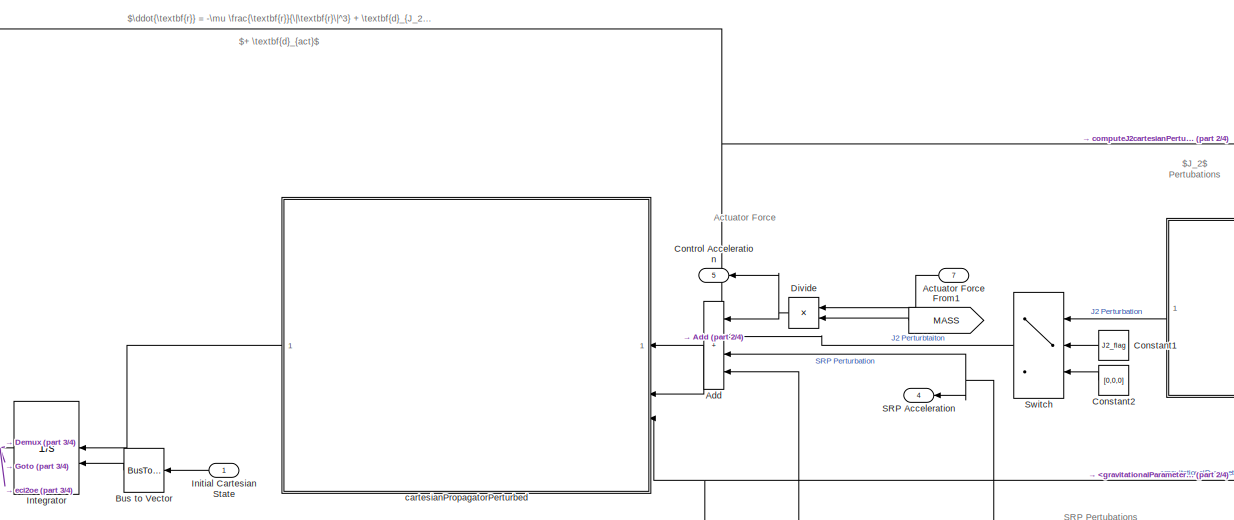
[diagram: root canvas - part 1/4, top center region]
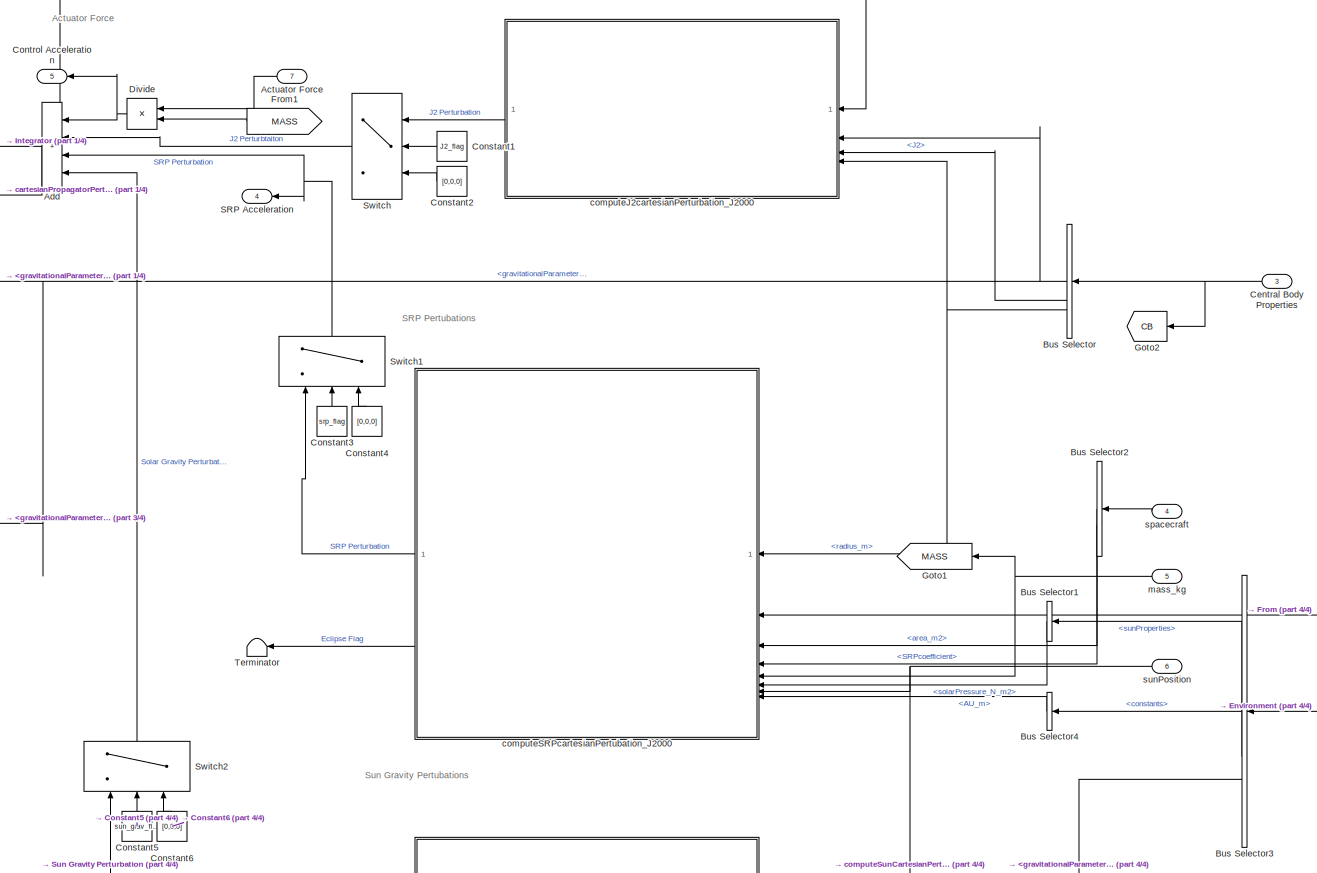
[diagram: root canvas - part 2/4, middle right region]
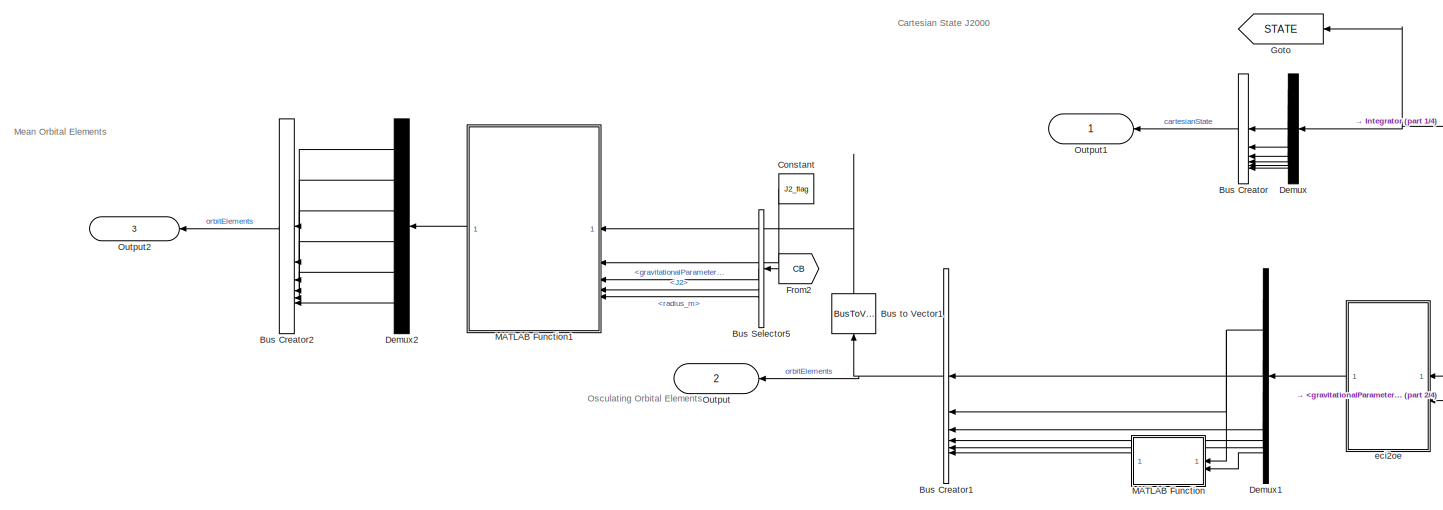
[diagram: root canvas - part 3/4, middle left region]
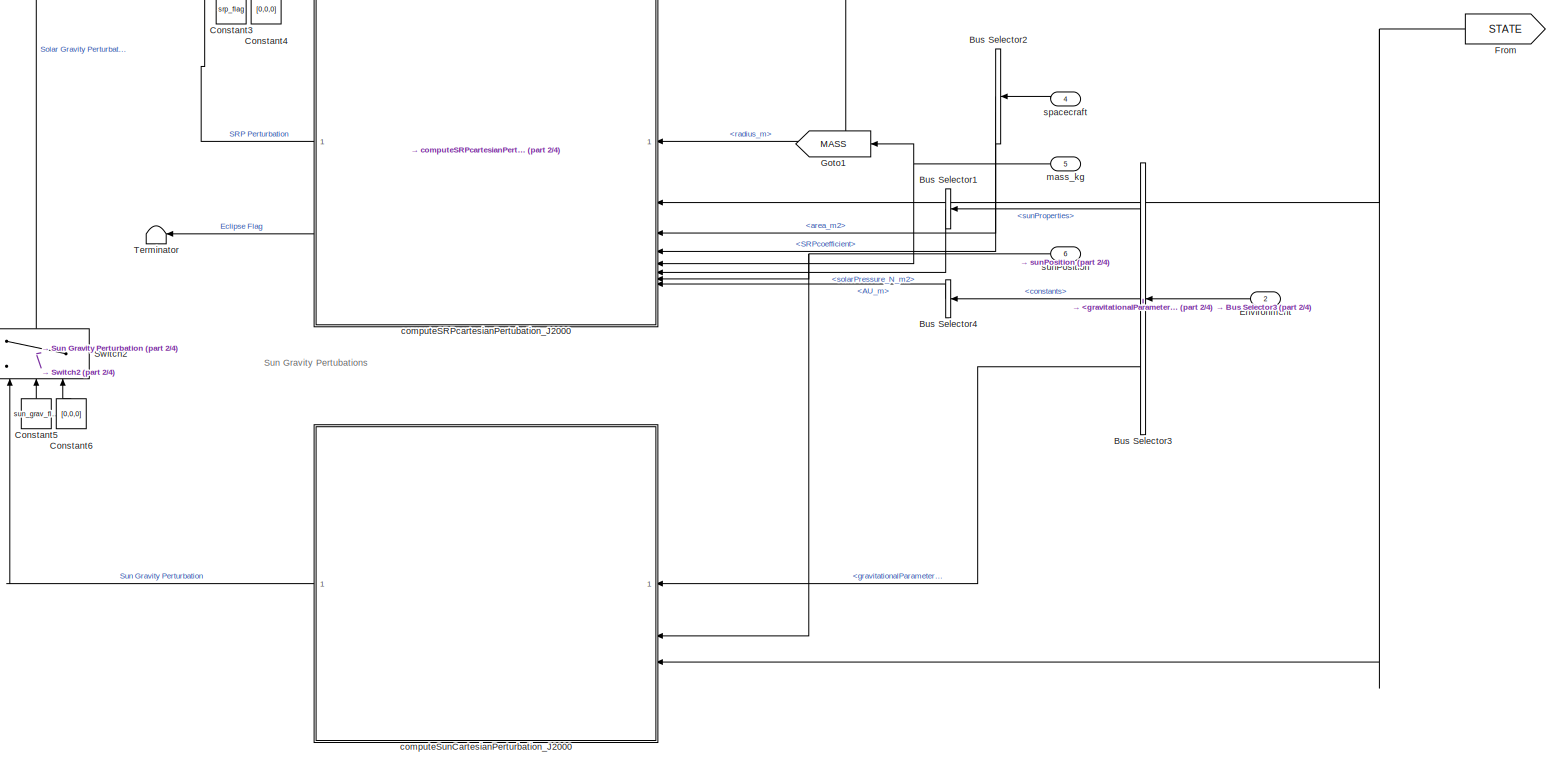
[diagram: root canvas - part 4/4, bottom right region]
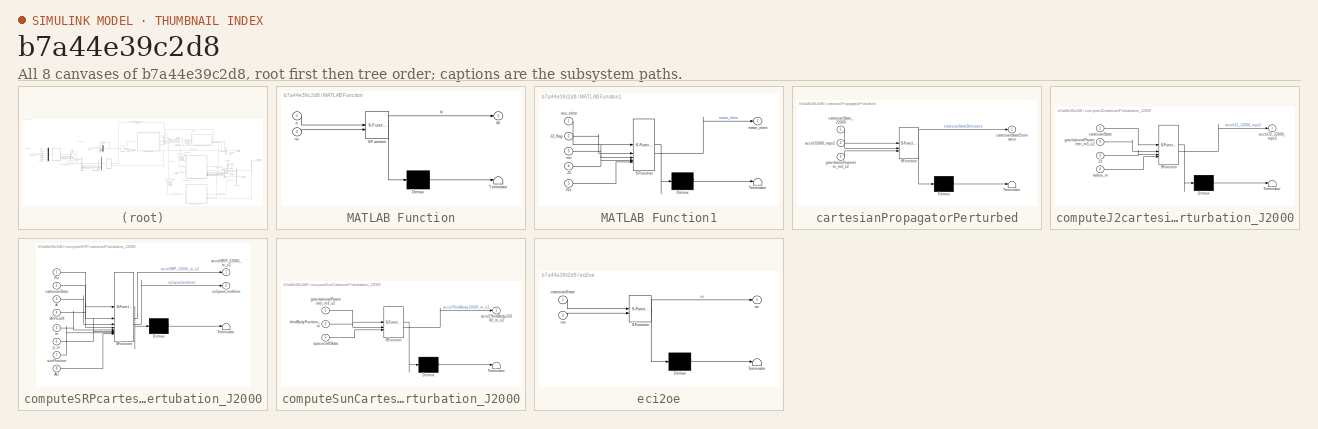
[diagram: thumbnail index - all 8 canvases of the model, root first then tree order]
MODEL slx_b7a44e39c2d8
KIND model
CONFIG AbsTol = auto
CONFIG EnableMultiTasking = off
CONFIG FixedStep = dt
CONFIG MaxStep = max_step_size
CONFIG MinStep = auto
CONFIG RelTol = relative_tolerance
CONFIG SampleTimeConstraint = Unconstrained
CONFIG SolverName = ode4
CONFIG StartTime = 0.0
CONFIG StopTime = 10.0
BLOCK [Inport] Actuator Force
  Port = 7
  PortDimensions = 3
BLOCK [Sum] Add
  IconShape = rectangular
  Inputs = ++++
BLOCK [BusCreator] Bus Creator
  DisplayOption = bar
  InheritFromInputs = off
  Inputs = 6
  NonVirtualBus = on
  OutDataTypeStr = Bus: cartesianState
BLOCK [BusCreator] Bus Creator1
  DisplayOption = bar
  InheritFromInputs = off
  Inputs = 6
  OutDataTypeStr = Bus: osculatingOrbitElements
BLOCK [BusCreator] Bus Creator2
  DisplayOption = bar
  InheritFromInputs = off
  Inputs = 6
  NonVirtualBus = on
  OutDataTypeStr = Bus: osculatingOrbitElements
BLOCK [BusSelector] Bus Selector
  OutputSignals = gravitationalParameter_m3_s2,J2,radius_m
BLOCK [BusSelector] Bus Selector1
  OutputSignals = solarPressure_N_m2
BLOCK [BusSelector] Bus Selector2
  OutputSignals = area_m2,SRPcoefficient
BLOCK [BusSelector] Bus Selector3
  OutputSignals = sunProperties,constants,sunProperties.gravitationalParameter_m3_s2
BLOCK [BusSelector] Bus Selector4
  OutputSignals = AU_m
BLOCK [BusSelector] Bus Selector5
  OutputSignals = gravitationalParameter_m3_s2,J2,radius_m
BLOCK [BusToVector] Bus to Vector
BLOCK [BusToVector] Bus to Vector1
  NameLocation = left
BLOCK [Inport] Central Body Properties
  OutDataTypeStr = Bus: planetProperties
  Port = 3
BLOCK [Constant] Constant
  Value = J2_flag
BLOCK [Constant] Constant1
  Value = J2_flag
BLOCK [Constant] Constant2
  Value = [0,0,0]
BLOCK [Constant] Constant3
  NameLocation = left
  Value = srp_flag
BLOCK [Constant] Constant4
  NameLocation = left
  Value = [0,0,0]
BLOCK [Constant] Constant5
  NameLocation = left
  Value = sun_grav_flag
BLOCK [Constant] Constant6
  NameLocation = left
  Value = [0,0,0]
BLOCK [Outport] Control Acceleration
  Port = 5
BLOCK [Demux] Demux
  Outputs = 6
BLOCK [Demux] Demux1
  Outputs = 6
BLOCK [Demux] Demux2
  Outputs = 6
BLOCK [Product] Divide
  Inputs = */
BLOCK [Inport] Environment
  OutDataTypeStr = Bus: environmentBus
  Port = 2
BLOCK [From] From
  GotoTag = STATE
BLOCK [From] From1
  GotoTag = MASS
BLOCK [From] From2
  GotoTag = CB
BLOCK [Goto] Goto
  GotoTag = STATE
BLOCK [Goto] Goto1
  GotoTag = MASS
BLOCK [Goto] Goto2
  GotoTag = CB
BLOCK [Inport] Initial Cartesian State
  OutDataTypeStr = Bus: cartesianState
BLOCK [Integrator] Integrator
  InitialConditionSource = external
BLOCK [SubSystem] MATLAB Function
  ErrorFcn = Stateflow.Translate.translate
  LibrarySourceBlock = simulink/User-Defined\nFunctions/MATLAB Function
  PermitHierarchicalResolution = ExplicitOnly
  SFBlockType = MATLAB Function
  TreatAsAtomicUnit = on
BLOCK [Demux] MATLAB Function/ Demux 
  Outputs = 1
BLOCK [S-Function] MATLAB Function/ SFunction 
  EnableBusSupport = on
  FunctionName = sf_sfun
  PortCounts = [2 2]
  SFcnIsStateOwnerBlock = off
  SFunctionDeploymentMode = off
  Tag = Stateflow S-Function 4
BLOCK [Terminator] MATLAB Function/ Terminator 
BLOCK [Outport] MATLAB Function/M
BLOCK [Inport] MATLAB Function/e
BLOCK [Inport] MATLAB Function/nu
  Port = 2
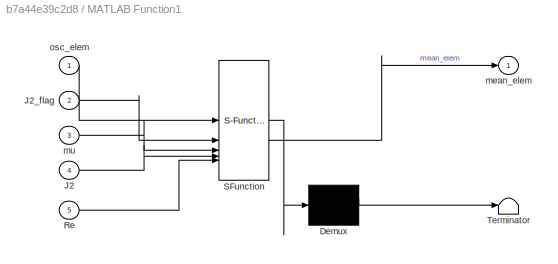
BLOCK [SubSystem] MATLAB Function1
  ErrorFcn = Stateflow.Translate.translate
  LibrarySourceBlock = simulink/User-Defined\nFunctions/MATLAB Function
  PermitHierarchicalResolution = ExplicitOnly
  SFBlockType = MATLAB Function
  TreatAsAtomicUnit = on
BLOCK [Demux] MATLAB Function1/ Demux 
  Outputs = 1
BLOCK [S-Function] MATLAB Function1/ SFunction 
  EnableBusSupport = on
  FunctionName = sf_sfun
  PortCounts = [5 2]
  SFcnIsStateOwnerBlock = off
  SFunctionDeploymentMode = off
  Tag = Stateflow S-Function 5
BLOCK [Terminator] MATLAB Function1/ Terminator 
BLOCK [Inport] MATLAB Function1/J2
  Port = 4
BLOCK [Inport] MATLAB Function1/J2_flag
  Port = 2
BLOCK [Inport] MATLAB Function1/Re
  Port = 5
BLOCK [Outport] MATLAB Function1/mean_elem
BLOCK [Inport] MATLAB Function1/mu
  Port = 3
BLOCK [Inport] MATLAB Function1/osc_elem
BLOCK [Outport] Output
  IconDisplay = Port number and signal name
  OutDataTypeStr = Bus: osculatingOrbitElements
  Port = 2
BLOCK [Outport] Output1
  IconDisplay = Port number and signal name
  OutDataTypeStr = Bus: cartesianState
BLOCK [Outport] Output2
  IconDisplay = Port number and signal name
  OutDataTypeStr = Bus: meanOrbitElements
  Port = 3
BLOCK [Outport] SRP Acceleration
  Port = 4
BLOCK [Switch] Switch
  Criteria = u2 > Threshold
  InputSameDT = off
  SaturateOnIntegerOverflow = off
BLOCK [Switch] Switch1
  Criteria = u2 > Threshold
  InputSameDT = off
  NameLocation = left
  SaturateOnIntegerOverflow = off
BLOCK [Switch] Switch2
  Criteria = u2 > Threshold
  InputSameDT = off
  NameLocation = left
  SaturateOnIntegerOverflow = off
BLOCK [Terminator] Terminator
BLOCK [SubSystem] cartesianPropagatorPerturbed
  ErrorFcn = Stateflow.Translate.translate
  LibrarySourceBlock = simulink/User-Defined\nFunctions/MATLAB Function
  PermitHierarchicalResolution = ExplicitOnly
  SFBlockType = MATLAB Function
  TreatAsAtomicUnit = on
BLOCK [Demux] cartesianPropagatorPerturbed/ Demux 
  Outputs = 1
BLOCK [S-Function] cartesianPropagatorPerturbed/ SFunction 
  EnableBusSupport = on
  FunctionName = sf_sfun
  PortCounts = [3 2]
  SFcnIsStateOwnerBlock = off
  SFunctionDeploymentMode = off
  Tag = Stateflow S-Function 1
BLOCK [Terminator] cartesianPropagatorPerturbed/ Terminator 
BLOCK [Inport] cartesianPropagatorPerturbed/accelJ2000_mps2
  Port = 2
BLOCK [Outport] cartesianPropagatorPerturbed/cartesianStateDerivative
BLOCK [Inport] cartesianPropagatorPerturbed/cartesianState_J2000
BLOCK [Inport] cartesianPropagatorPerturbed/gravitationParameter_m3_s2
  Port = 3
BLOCK [SubSystem] computeJ2cartesianPerturbation_J2000
  ErrorFcn = Stateflow.Translate.translate
  LibrarySourceBlock = simulink/User-Defined\nFunctions/MATLAB Function
  PermitHierarchicalResolution = ExplicitOnly
  SFBlockType = MATLAB Function
  TreatAsAtomicUnit = on
BLOCK [Demux] computeJ2cartesianPerturbation_J2000/ Demux 
  Outputs = 1
BLOCK [S-Function] computeJ2cartesianPerturbation_J2000/ SFunction 
  EnableBusSupport = on
  FunctionName = sf_sfun
  PortCounts = [4 2]
  SFcnIsStateOwnerBlock = off
  SFunctionDeploymentMode = off
  Tag = Stateflow S-Function 2
BLOCK [Terminator] computeJ2cartesianPerturbation_J2000/ Terminator 
BLOCK [Inport] computeJ2cartesianPerturbation_J2000/J2
  Port = 3
BLOCK [Outport] computeJ2cartesianPerturbation_J2000/accelJ2_J2000_mps2
BLOCK [Inport] computeJ2cartesianPerturbation_J2000/cartesianState
BLOCK [Inport] computeJ2cartesianPerturbation_J2000/gravitationalParameter_m3_s2
  Port = 2
BLOCK [Inport] computeJ2cartesianPerturbation_J2000/radius_m
  Port = 4
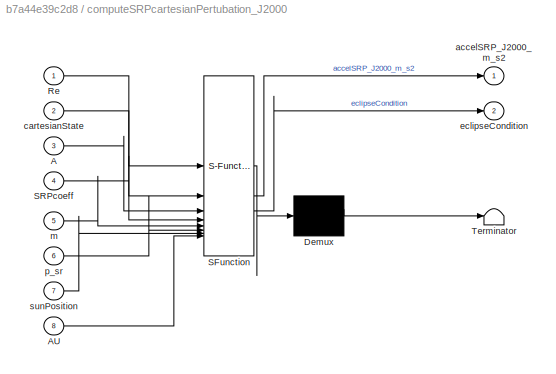
BLOCK [SubSystem] computeSRPcartesianPertubation_J2000
  ErrorFcn = Stateflow.Translate.translate
  LibrarySourceBlock = simulink/User-Defined\nFunctions/MATLAB Function
  PermitHierarchicalResolution = ExplicitOnly
  SFBlockType = MATLAB Function
  TreatAsAtomicUnit = on
BLOCK [Demux] computeSRPcartesianPertubation_J2000/ Demux 
  Outputs = 1
BLOCK [S-Function] computeSRPcartesianPertubation_J2000/ SFunction 
  EnableBusSupport = on
  FunctionName = sf_sfun
  PortCounts = [8 3]
  SFcnIsStateOwnerBlock = off
  SFunctionDeploymentMode = off
  Tag = Stateflow S-Function 6
BLOCK [Terminator] computeSRPcartesianPertubation_J2000/ Terminator 
BLOCK [Inport] computeSRPcartesianPertubation_J2000/A
  Port = 3
BLOCK [Inport] computeSRPcartesianPertubation_J2000/AU
  Port = 8
BLOCK [Inport] computeSRPcartesianPertubation_J2000/Re
BLOCK [Inport] computeSRPcartesianPertubation_J2000/SRPcoeff
  Port = 4
BLOCK [Outport] computeSRPcartesianPertubation_J2000/accelSRP_J2000_m_s2
BLOCK [Inport] computeSRPcartesianPertubation_J2000/cartesianState
  Port = 2
BLOCK [Outport] computeSRPcartesianPertubation_J2000/eclipseCondition
  Port = 2
BLOCK [Inport] computeSRPcartesianPertubation_J2000/m
  Port = 5
BLOCK [Inport] computeSRPcartesianPertubation_J2000/p_sr
  Port = 6
BLOCK [Inport] computeSRPcartesianPertubation_J2000/sunPosition
  Port = 7
BLOCK [SubSystem] computeSunCartesianPerturbation_J2000
  ErrorFcn = Stateflow.Translate.translate
  LibrarySourceBlock = simulink/User-Defined\nFunctions/MATLAB Function
  PermitHierarchicalResolution = ExplicitOnly
  SFBlockType = MATLAB Function
  TreatAsAtomicUnit = on
BLOCK [Demux] computeSunCartesianPerturbation_J2000/ Demux 
  Outputs = 1
BLOCK [S-Function] computeSunCartesianPerturbation_J2000/ SFunction 
  EnableBusSupport = on
  FunctionName = sf_sfun
  PortCounts = [3 2]
  SFcnIsStateOwnerBlock = off
  SFunctionDeploymentMode = off
  Tag = Stateflow S-Function 7
BLOCK [Terminator] computeSunCartesianPerturbation_J2000/ Terminator 
BLOCK [Outport] computeSunCartesianPerturbation_J2000/accelThirdBodyJ2000_m_s2
BLOCK [Inport] computeSunCartesianPerturbation_J2000/gravitationalParameter_m3_s2
BLOCK [Inport] computeSunCartesianPerturbation_J2000/spacecraftState
  Port = 3
BLOCK [Inport] computeSunCartesianPerturbation_J2000/thirdBodyPosition_m
  Port = 2
BLOCK [SubSystem] eci2oe
  ErrorFcn = Stateflow.Translate.translate
  LibrarySourceBlock = simulink/User-Defined\nFunctions/MATLAB Function
  PermitHierarchicalResolution = ExplicitOnly
  SFBlockType = MATLAB Function
  TreatAsAtomicUnit = on
BLOCK [Demux] eci2oe/ Demux 
  Outputs = 1
BLOCK [S-Function] eci2oe/ SFunction 
  EnableBusSupport = on
  FunctionName = sf_sfun
  PortCounts = [2 2]
  SFcnIsStateOwnerBlock = off
  SFunctionDeploymentMode = off
  Tag = Stateflow S-Function 3
BLOCK [Terminator] eci2oe/ Terminator 
BLOCK [Inport] eci2oe/cartesianState
BLOCK [Inport] eci2oe/mu
  Port = 2
BLOCK [Outport] eci2oe/oe
BLOCK [Inport] mass_kg
  Port = 5
BLOCK [Inport] spacecraft
  OutDataTypeStr = Bus: properties
  Port = 4
BLOCK [Inport] sunPosition
  Port = 6
  PortDimensions = 3
ANNOTATION (root): Actuator Force
ANNOTATION (root): Cartesian State J2000
ANNOTATION (root): Mean Orbital Elements
ANNOTATION (root): Osculating Orbital Elements
ANNOTATION (root): SRP Pertubations
ANNOTATION (root): Sun Gravity Pertubations
ANNOTATION (root): $J_2$ Pertubations
ANNOTATION (root): $\ddot{\textbf{r}} = -\mu \frac{\textbf{r}}{\|\textbf{r}\|^3} + \textbf{d}_{J_2} + \textbf{d}_{SRP}$ $+ \textbf{d}_{act}$
LINE Actuator Force:1 -> Divide:1
LINE Add:1 -> cartesianPropagatorPerturbed:2
NET Bus Creator1:1 -> Bus to Vector1:1, Output:1
LINE Bus Creator2:1 -> Output2:1
LINE Bus Creator:1 -> Output1:1
LINE Bus Selector1:1 -> computeSRPcartesianPertubation_J2000:6
LINE Bus Selector2:1 -> computeSRPcartesianPertubation_J2000:3
LINE Bus Selector2:2 -> computeSRPcartesianPertubation_J2000:4
LINE Bus Selector3:1 -> Bus Selector1:1
LINE Bus Selector3:2 -> Bus Selector4:1
LINE Bus Selector3:3 -> computeSunCartesianPerturbation_J2000:1
LINE Bus Selector4:1 -> computeSRPcartesianPertubation_J2000:8
LINE Bus Selector5:1 -> MATLAB Function1:3
LINE Bus Selector5:2 -> MATLAB Function1:4
LINE Bus Selector5:3 -> MATLAB Function1:5
NET Bus Selector:1 -> cartesianPropagatorPerturbed:3, computeJ2cartesianPerturbation_J2000:2, eci2oe:2
LINE Bus Selector:2 -> computeJ2cartesianPerturbation_J2000:3
NET Bus Selector:3 -> computeJ2cartesianPerturbation_J2000:4, computeSRPcartesianPertubation_J2000:1
LINE Bus to Vector1:1 -> MATLAB Function1:1
LINE Bus to Vector:1 -> Integrator:2
NET Central Body Properties:1 -> Bus Selector:1, Goto2:1
LINE Constant1:1 -> Switch:2
LINE Constant2:1 -> Switch:3
LINE Constant3:1 -> Switch1:2
LINE Constant4:1 -> Switch1:3
LINE Constant5:1 -> Switch2:2
LINE Constant6:1 -> Switch2:3
LINE Constant:1 -> MATLAB Function1:2
LINE Demux1:1 -> Bus Creator1:1
NET Demux1:2 -> Bus Creator1:2, MATLAB Function:1
LINE Demux1:3 -> Bus Creator1:3
LINE Demux1:4 -> Bus Creator1:4
LINE Demux1:5 -> Bus Creator1:5
LINE Demux1:6 -> MATLAB Function:2
LINE Demux2:1 -> Bus Creator2:1
LINE Demux2:2 -> Bus Creator2:2
LINE Demux2:3 -> Bus Creator2:3
LINE Demux2:4 -> Bus Creator2:4
LINE Demux2:5 -> Bus Creator2:5
LINE Demux2:6 -> Bus Creator2:6
LINE Demux:1 -> Bus Creator:1
LINE Demux:2 -> Bus Creator:2
LINE Demux:3 -> Bus Creator:3
LINE Demux:4 -> Bus Creator:4
LINE Demux:5 -> Bus Creator:5
LINE Demux:6 -> Bus Creator:6
NET Divide:1 -> Add:1, Control Acceleration:1
LINE Environment:1 -> Bus Selector3:1
LINE From1:1 -> Divide:2
LINE From2:1 -> Bus Selector5:1
NET From:1 -> computeSRPcartesianPertubation_J2000:2, computeSunCartesianPerturbation_J2000:3
LINE Initial Cartesian State:1 -> Bus to Vector:1
NET Integrator:1 -> Demux:1, Goto:1, cartesianPropagatorPerturbed:1, computeJ2cartesianPerturbation_J2000:1, eci2oe:1
LINE MATLAB Function1:1 -> Demux2:1
LINE MATLAB Function:1 -> Bus Creator1:6
NET Switch1:1 -> Add:3, SRP Acceleration:1
LINE Switch2:1 -> Add:4
LINE Switch:1 -> Add:2
LINE cartesianPropagatorPerturbed:1 -> Integrator:1
LINE computeJ2cartesianPerturbation_J2000:1 -> Switch:1
LINE computeSRPcartesianPertubation_J2000:1 -> Switch1:1
LINE computeSRPcartesianPertubation_J2000:2 -> Terminator:1
LINE computeSunCartesianPerturbation_J2000:1 -> Switch2:1
LINE eci2oe:1 -> Demux1:1
NET mass_kg:1 -> Goto1:1, computeSRPcartesianPertubation_J2000:5
LINE spacecraft:1 -> Bus Selector2:1
NET sunPosition:1 -> computeSRPcartesianPertubation_J2000:7, computeSunCartesianPerturbation_J2000:2
note: NET lines group one-source signal fan-out (src -> all destinations, sorted); 1:1 wires keep LINE
CHART cartesianPropagatorPerturbed states=1 transitions=1
  STATE_LABEL 'eML_blk_kernel()'
  STATE_LABEL 'SCRIPT:\nfunction cartesianStateDerivative = cartesianPropagatorPerturbed(cartesianState_J2000,accelJ2000_mps2,gravitationParameter_m3_s2)\n\ncartesianStateDerivative = cartesianPropagatorPerturbed(cartesianState_J2000,accelJ2000_mps2,gravitationParameter_m3_s2);\n\nend\n'
CHART computeJ2cartesianPerturbation_J2000 states=1 transitions=1
  STATE_LABEL 'eML_blk_kernel()'
  STATE_LABEL 'SCRIPT:\nfunction accelJ2_J2000_mps2 = computeJ2accel(cartesianState,gravitationalParameter_m3_s2,J2,radius_m)\n\naccelJ2_J2000_mps2 = computeJ2cartesianPerturbation_J2000(cartesianState,gravitationalParameter_m3_s2,J2,radius_m);\n\nend\n'
CHART eci2oe states=1 transitions=1
  STATE_LABEL 'eML_blk_kernel()'
  STATE_LABEL 'SCRIPT:\nfunction oe = eci2oe(cartesianState,mu)\n[oe,~,~,~] = eci2oe( cartesianState , mu );\nend\n'
CHART MATLAB Function states=1 transitions=1
  STATE_LABEL 'eML_blk_kernel()'
  STATE_LABEL 'SCRIPT:\nfunction M = nu2M(e,nu)\nM = nu2M(nu,e);\nend\n'
CHART MATLAB Function1 states=1 transitions=1
  STATE_LABEL 'eML_blk_kernel()'
  STATE_LABEL 'SCRIPT:\nfunction mean_elem = osc2mean(osc_elem, J2_flag, mu, J2, Re)\nmean_elem = osc2mean(osc_elem, J2_flag, mu, J2, Re);\nend\n'
CHART computeSRPcartesianPertubation_J2000 states=1 transitions=1
  STATE_LABEL 'eML_blk_kernel()'
  STATE_LABEL 'SCRIPT:\nfunction [accelSRP_J2000_m_s2, eclipseCondition] = computeSRPcartesianPertubation_J2000(Re, cartesianState, A, SRPcoeff, m, p_sr, sunPosition, AU)\n\n[accelSRP_J2000_m_s2, eclipseCondition] = computeSRPcartesianPertubation_J2000(cartesianState, A, SRPcoeff, m, p_sr, sunPosition, Re, AU);\n\nend\n'
CHART computeSunCartesianPerturbation_J2000 states=1 transitions=1
  STATE_LABEL 'eML_blk_kernel()'
  STATE_LABEL 'SCRIPT:\nfunction accelThirdBodyJ2000_m_s2 = computeThirdBodyPerturbation_J2000(gravitationalParameter_m3_s2,thirdBodyPosition_m,spacecraftState)\naccelThirdBodyJ2000_m_s2 = computeThirdBodyPerturbation_J2000(gravitationalParameter_m3_s2,thirdBodyPosition_m,spacecraftState);\nend\n'
CHART  states=0 transitions=0
CHART  states=0 transitions=0
CHART  states=0 transitions=0
CHART  states=0 transitions=0
CHART  states=0 transitions=0
CHART  states=0 transitions=0
CHART  states=0 transitions=0
